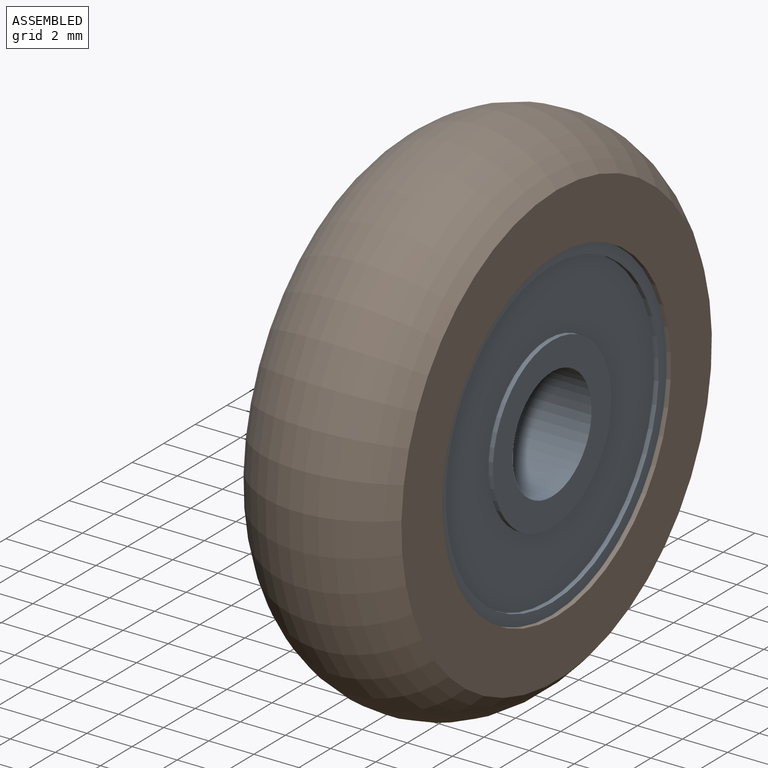
[diagram: assembled view]
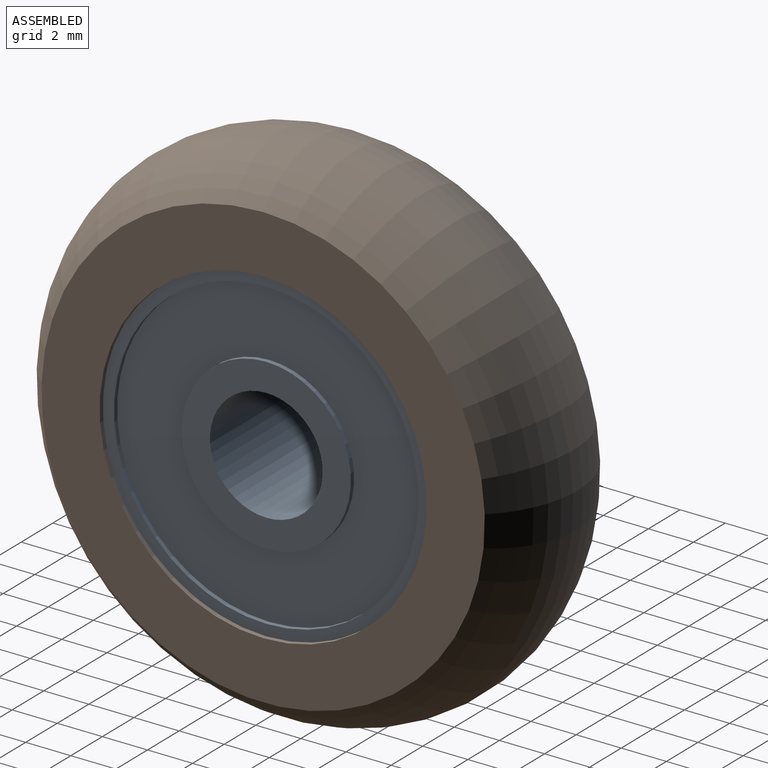
[diagram: assembled view, second angle]
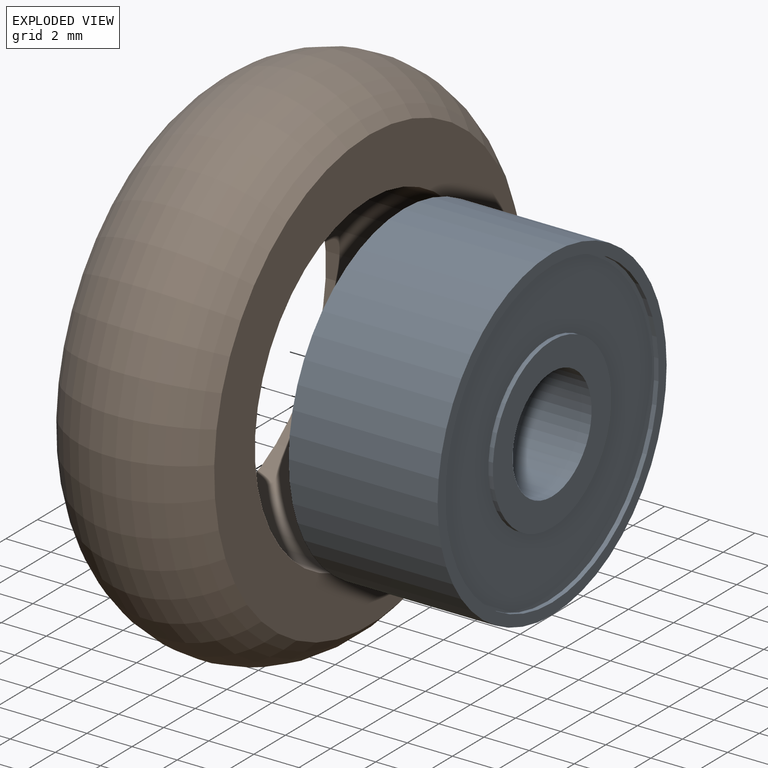
[diagram: exploded view]
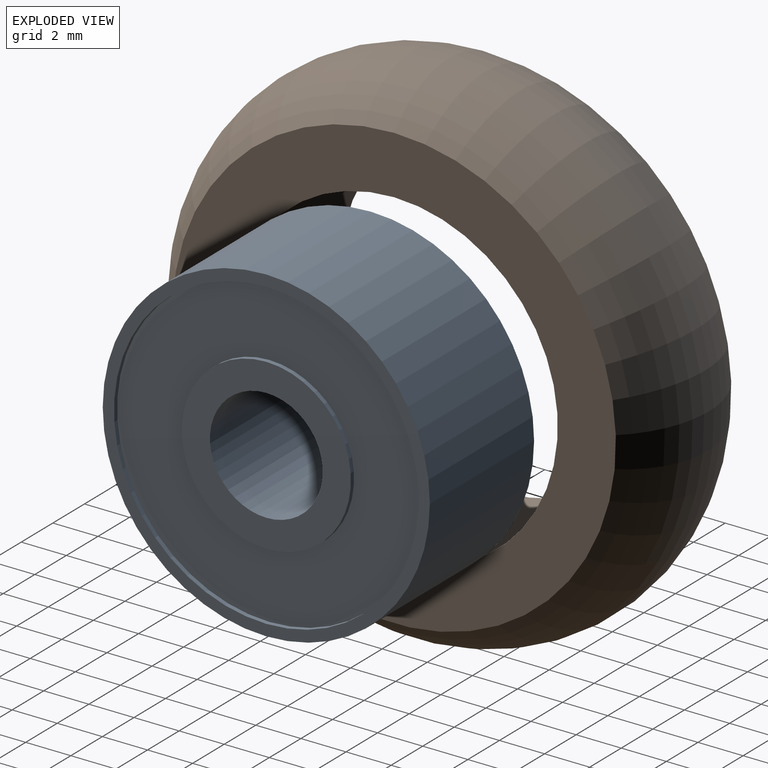
[diagram: exploded view, second angle]
ASSEMBLY  parts=2 mates=2
PART A: 12 faces, bbox 6.6x14.5x14.5 mm
  f0: plane 14.5x14.5mm, normal (-1,0,0), area 22mm2, adj f1,f11
  f1: cylinder r=6.75mm len=13.5mm, axis (-1,0,0), area 8.5mm2, adj f0,f2
  f2: plane 13.5x13.5mm, normal (-1,0,0), area 99mm2, adj f1,f3
  f3: cylinder r=3.75mm len=7.5mm, axis (-1,0,0), area 4.7mm2, adj f2,f4
  f4: plane 7.5x7.5mm, normal (-1,0,0), area 24.5mm2, adj f3,f5
  f5: cylinder r=2.5mm len=6.6mm, axis (-1,0,0), area 103.7mm2, adj f4,f6
  f6: plane 7.5x7.5mm, normal (1,0,0), area 24.5mm2, adj f5,f7
  f7: cylinder r=3.75mm len=7.5mm, axis (-1,0,0), area 4.7mm2, adj f6,f8
  f8: plane 13.5x13.5mm, normal (1,0,0), area 99mm2, adj f7,f9
  f9: cylinder r=6.75mm len=13.5mm, axis (-1,0,0), area 8.5mm2, adj f8,f10
  f10: plane 14.5x14.5mm, normal (1,0,0), area 22mm2, adj f9,f11
  f11: cylinder r=7.25mm len=14.5mm, axis (-1,0,0), area 300.7mm2, adj f0,f10
PART B: 4 faces, bbox 7x24.9x24.9 mm
  f0: plane 19.66x19.66mm, normal (1,0,0), area 138.3mm2, adj f1,f3
  f1: torus R=7mm, axis (-1,0,0), area 550.7mm2, adj f0,f2
  f2: plane 19.66x19.66mm, normal (-1,0,0), area 138.3mm2, adj f1,f3
  f3: cylinder r=7.25mm len=14.5mm, axis (-1,0,0), area 318.9mm2, adj f0,f2
PLACE A t=(8.51,-6.27,4.32)mm
PLACE B t=(8.51,-6.27,4.32)mm
MATE cylindrical A.f1 <-> B.f1  axis (-1,0,0) through (11.81,-6.27,4.32)mm
MATE planar A.f1 <-> B.f1  axis (-1,0,0) through (8.51,-6.27,4.32)mm
